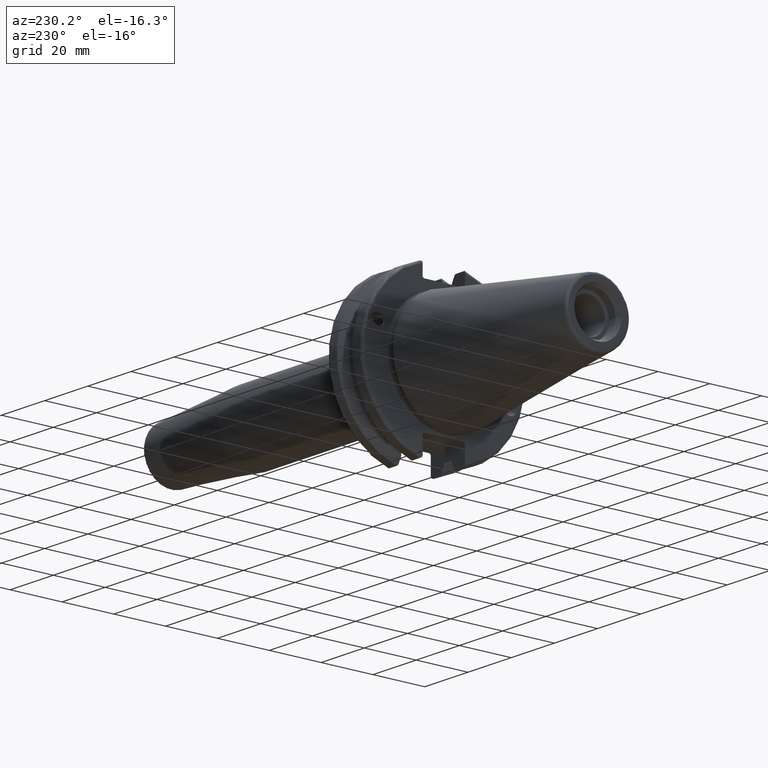
[diagram: clean part render]
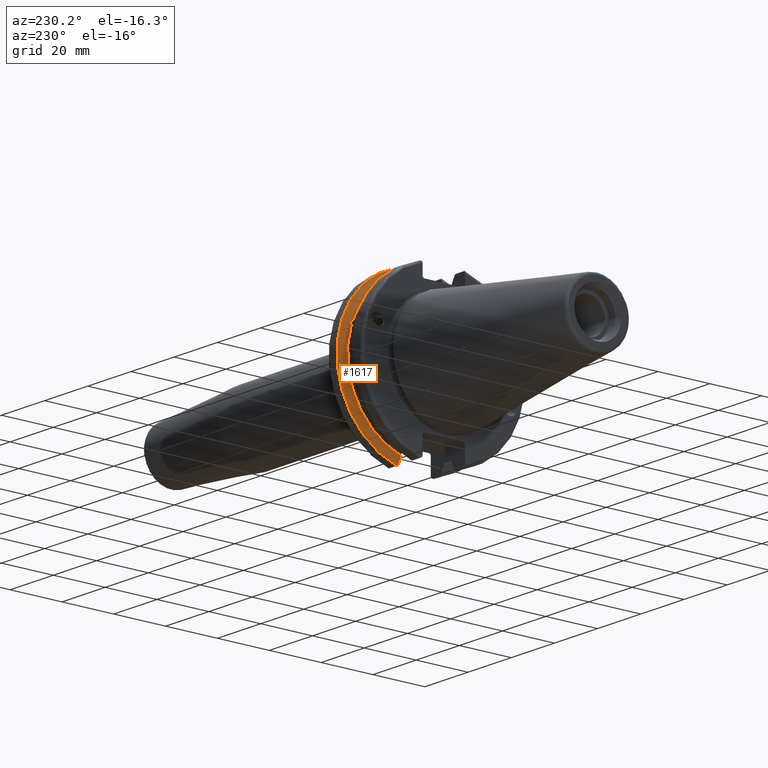
[diagram: same view with one face highlighted and labeled with its STEP entity id]
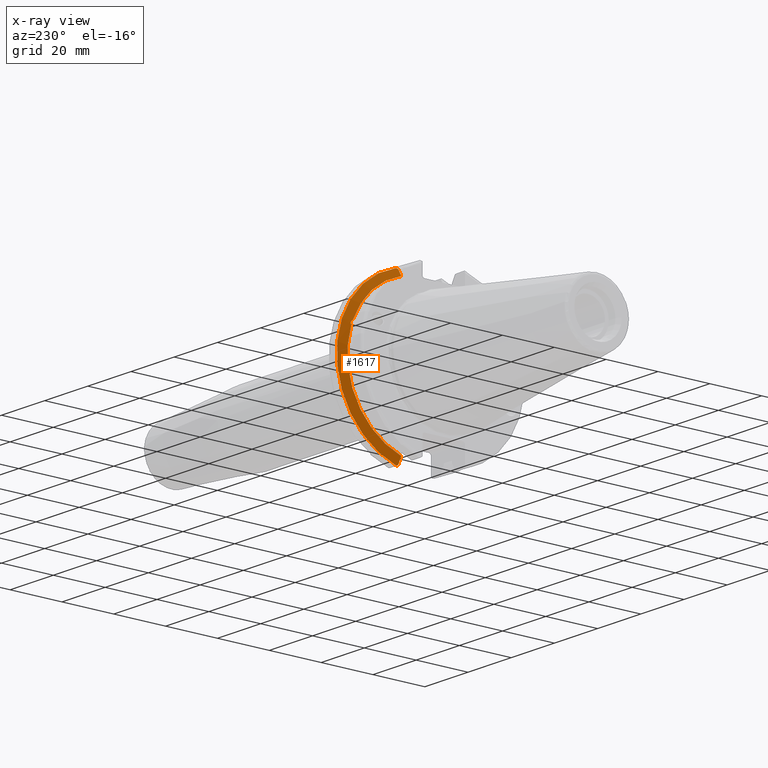
[diagram: x-ray of the same camera — body ghosted, the highlighted face saturated]
A machine part, auxiliary view. The second image highlights one B-rep face of the part: STEP entity #1617.
The next image is the same camera in x-ray: the body ghosted, the highlighted face saturated — about 0% of this face is hidden behind the body in this view.
In plain terms, the highlighted conical surface has half-angle 60 deg.
Its self-contained STEP definition (entity closure, byte-faithful):
#23=(
BOUNDED_CURVE()
B_SPLINE_CURVE(2,(#2862,#2863,#2864),.UNSPECIFIED.,.F.,.F.)
B_SPLINE_CURVE_WITH_KNOTS((3,3),(0.329353533631226,0.393258405001025),
 .UNSPECIFIED.)
CURVE()
GEOMETRIC_REPRESENTATION_ITEM()
RATIONAL_B_SPLINE_CURVE((1.00047644010577,1.00028444218285,1.))
REPRESENTATION_ITEM('')
);
#24=(
BOUNDED_CURVE()
B_SPLINE_CURVE(2,(#2876,#2877,#2878),.UNSPECIFIED.,.F.,.F.)
B_SPLINE_CURVE_WITH_KNOTS((3,3),(0.0550586467393769,0.331607789535852),
 .UNSPECIFIED.)
CURVE()
GEOMETRIC_REPRESENTATION_ITEM()
RATIONAL_B_SPLINE_CURVE((1.00031614444922,1.00095203903643,1.))
REPRESENTATION_ITEM('')
);
#29=(
BOUNDED_CURVE()
B_SPLINE_CURVE(2,(#3041,#3042,#3043),.UNSPECIFIED.,.F.,.F.)
B_SPLINE_CURVE_WITH_KNOTS((3,3),(0.,0.276549142795274),.UNSPECIFIED.)
CURVE()
GEOMETRIC_REPRESENTATION_ITEM()
RATIONAL_B_SPLINE_CURVE((1.,1.00095203903599,1.00031614444907))
REPRESENTATION_ITEM('')
);
#30=(
BOUNDED_CURVE()
B_SPLINE_CURVE(2,(#3058,#3059,#3060),.UNSPECIFIED.,.F.,.F.)
B_SPLINE_CURVE_WITH_KNOTS((3,3),(0.,0.0639048713675655),.UNSPECIFIED.)
CURVE()
GEOMETRIC_REPRESENTATION_ITEM()
RATIONAL_B_SPLINE_CURVE((1.,1.00028444218286,1.00047644010578))
REPRESENTATION_ITEM('')
);
#40=B_SPLINE_CURVE_WITH_KNOTS('',3,(#2660,#2661,#2662,#2663,#2664,#2665,
#2666,#2667),.UNSPECIFIED.,.F.,.F.,(4,2,2,4),(0.451995700189023,0.464547828547662,
0.504528771685167,0.544509714822673),.UNSPECIFIED.);
#44=B_SPLINE_CURVE_WITH_KNOTS('',3,(#2722,#2723,#2724,#2725,#2726,#2727,
#2728,#2729),.UNSPECIFIED.,.F.,.F.,(4,2,2,4),(0.544509714822673,0.584490657960178,
0.624471601097683,0.637023729456323),.UNSPECIFIED.);
#256=FACE_OUTER_BOUND('',#363,.T.);
#363=EDGE_LOOP('',(#1473,#1474,#1475,#1476,#1477,#1478,#1479,#1480,#1481));
#612=CIRCLE('',#1749,28.9593772964944);
#635=CIRCLE('',#1808,31.75);
#642=CIRCLE('',#1823,28.9593772964944);
#724=VERTEX_POINT('',#2657);
#725=VERTEX_POINT('',#2659);
#732=VERTEX_POINT('',#2720);
#741=VERTEX_POINT('',#2762);
#768=VERTEX_POINT('',#2859);
#769=VERTEX_POINT('',#2861);
#794=VERTEX_POINT('',#3038);
#795=VERTEX_POINT('',#3040);
#798=VERTEX_POINT('',#3056);
#911=EDGE_CURVE('',#725,#724,#40,.T.);
#919=EDGE_CURVE('',#724,#732,#44,.T.);
#931=EDGE_CURVE('',#741,#725,#612,.T.);
#967=EDGE_CURVE('',#768,#769,#23,.T.);
#972=EDGE_CURVE('',#768,#741,#24,.T.);
#1017=EDGE_CURVE('',#795,#794,#29,.T.);
#1025=EDGE_CURVE('',#798,#794,#30,.T.);
#1026=EDGE_CURVE('',#769,#798,#635,.T.);
#1036=EDGE_CURVE('',#732,#795,#642,.T.);
#1473=ORIENTED_EDGE('',*,*,#911,.T.);
#1474=ORIENTED_EDGE('',*,*,#919,.T.);
#1475=ORIENTED_EDGE('',*,*,#1036,.T.);
#1476=ORIENTED_EDGE('',*,*,#1017,.T.);
#1477=ORIENTED_EDGE('',*,*,#1025,.F.);
#1478=ORIENTED_EDGE('',*,*,#1026,.F.);
#1479=ORIENTED_EDGE('',*,*,#967,.F.);
#1480=ORIENTED_EDGE('',*,*,#972,.T.);
#1481=ORIENTED_EDGE('',*,*,#931,.T.);
#1532=CONICAL_SURFACE('',#1822,30.3546886482472,1.0471975511966);
#1617=ADVANCED_FACE('',(#256),#1532,.T.);
#1749=AXIS2_PLACEMENT_3D('',#2763,#2081,#2082);
#1808=AXIS2_PLACEMENT_3D('',#3062,#2246,#2247);
#1822=AXIS2_PLACEMENT_3D('',#3082,#2277,#2278);
#1823=AXIS2_PLACEMENT_3D('',#3083,#2279,#2280);
#2081=DIRECTION('center_axis',(1.,0.,0.));
#2082=DIRECTION('ref_axis',(0.,0.,-1.));
#2246=DIRECTION('center_axis',(1.,0.,0.));
#2247=DIRECTION('ref_axis',(0.,0.,-1.));
#2277=DIRECTION('center_axis',(1.,0.,0.));
#2278=DIRECTION('ref_axis',(0.,1.,0.));
#2279=DIRECTION('center_axis',(1.,0.,0.));
#2280=DIRECTION('ref_axis',(0.,0.,-1.));
#2657=CARTESIAN_POINT('',(13.2341,27.51401829017,10.0142836826778));
#2659=CARTESIAN_POINT('',(13.0491,27.4956274489925,9.09043478536244));
#2660=CARTESIAN_POINT('Ctrl Pts',(13.0491,27.4956274489925,9.09043478536245));
#2661=CARTESIAN_POINT('Ctrl Pts',(13.0632204071996,27.5087667900418,9.12860597076217));
#2662=CARTESIAN_POINT('Ctrl Pts',(13.0766929817857,27.5206055003513,9.16696618806877));
#2663=CARTESIAN_POINT('Ctrl Pts',(13.130081441159,27.5642934663232,9.32791534028656));
#2664=CARTESIAN_POINT('Ctrl Pts',(13.1682197084175,27.5867382255984,9.46717946402648));
#2665=CARTESIAN_POINT('Ctrl Pts',(13.2204106446058,27.5847569104122,9.74771639360672));
#2666=CARTESIAN_POINT('Ctrl Pts',(13.2341,27.559599249844,9.8890510252165));
#2667=CARTESIAN_POINT('Ctrl Pts',(13.2341,27.51401829017,10.0142836826778));
#2720=CARTESIAN_POINT('',(13.0491,26.9060914640648,10.7101715919071));
#2722=CARTESIAN_POINT('Ctrl Pts',(13.2341,27.51401829017,10.0142836826778));
#2723=CARTESIAN_POINT('Ctrl Pts',(13.2341,27.4684373304961,10.139516340139));
#2724=CARTESIAN_POINT('Ctrl Pts',(13.2204106446058,27.3968610665578,10.2639559818059));
#2725=CARTESIAN_POINT('Ctrl Pts',(13.1682197084175,27.2180531796526,10.4801333026531));
#2726=CARTESIAN_POINT('Ctrl Pts',(13.130081441159,27.1113422433189,10.5723885976054));
#2727=CARTESIAN_POINT('Ctrl Pts',(13.0766929817857,26.9744191989197,10.6676007180674));
#2728=CARTESIAN_POINT('Ctrl Pts',(13.0632204071996,26.9406927482839,10.6893765730703));
#2729=CARTESIAN_POINT('Ctrl Pts',(13.0491,26.9060914640648,10.7101715919071));
#2762=CARTESIAN_POINT('',(13.0491,8.19,-27.7771386827498));
#2763=CARTESIAN_POINT('Origin',(13.0491,0.,0.));
#2859=CARTESIAN_POINT('',(14.3815146964874,8.19,-30.1755016258903));
#2861=CARTESIAN_POINT('',(14.6602667690756,8.67204822802685,-30.5427254764662));
#2862=CARTESIAN_POINT('Ctrl Pts',(14.3815146964874,8.19,-30.1755016258903));
#2863=CARTESIAN_POINT('Ctrl Pts',(14.5192085187884,8.42917748263464,-30.3577067892692));
#2864=CARTESIAN_POINT('Ctrl Pts',(14.6602667690756,8.67204822802686,-30.5427254764662));
#2876=CARTESIAN_POINT('Ctrl Pts',(14.3815146964874,8.18999999999999,-30.1755016258903));
#2877=CARTESIAN_POINT('Ctrl Pts',(13.687736438474,8.19,-28.9303689539668));
#2878=CARTESIAN_POINT('Ctrl Pts',(13.0491,8.19,-27.7771386827498));
#3038=CARTESIAN_POINT('',(14.3815146964874,8.19,30.1755016258903));
#3040=CARTESIAN_POINT('',(13.0491,8.19,27.7771386827498));
#3041=CARTESIAN_POINT('Ctrl Pts',(13.0491,8.19,27.7771386827498));
#3042=CARTESIAN_POINT('Ctrl Pts',(13.687736438489,8.19,28.9303689539938));
#3043=CARTESIAN_POINT('Ctrl Pts',(14.3815146964874,8.19,30.1755016258903));
#3056=CARTESIAN_POINT('',(14.6602667690756,8.67204822802685,30.5427254764662));
#3058=CARTESIAN_POINT('Ctrl Pts',(14.6602667690756,8.67204822802687,30.5427254764662));
#3059=CARTESIAN_POINT('Ctrl Pts',(14.5192085187837,8.42917748262644,30.357706789263));
#3060=CARTESIAN_POINT('Ctrl Pts',(14.3815146964874,8.19,30.1755016258903));
#3062=CARTESIAN_POINT('Origin',(14.6602667690756,0.,0.));
#3082=CARTESIAN_POINT('Origin',(13.8546833845378,0.,0.));
#3083=CARTESIAN_POINT('Origin',(13.0491,0.,0.));